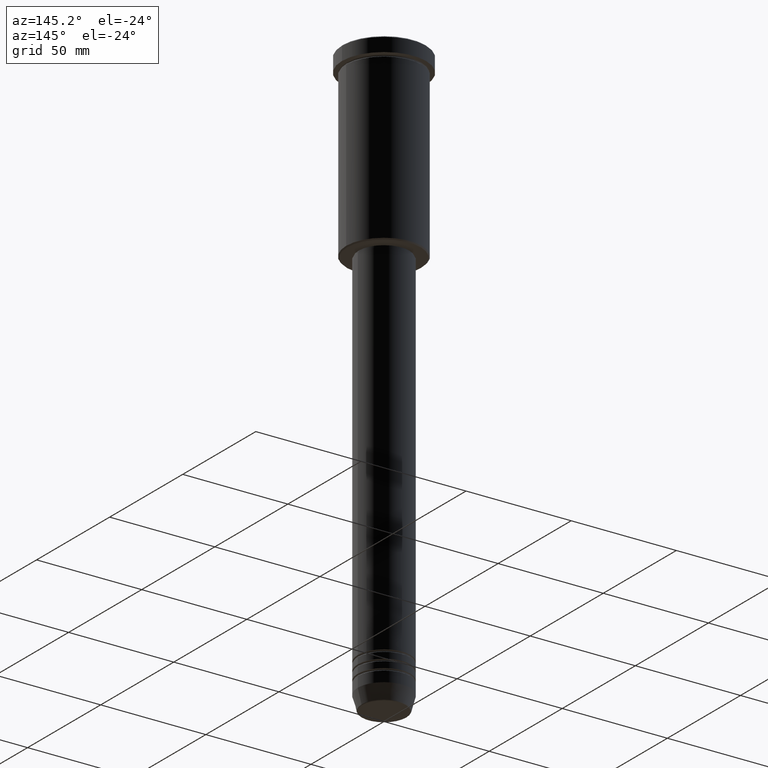
[diagram: clean part render]
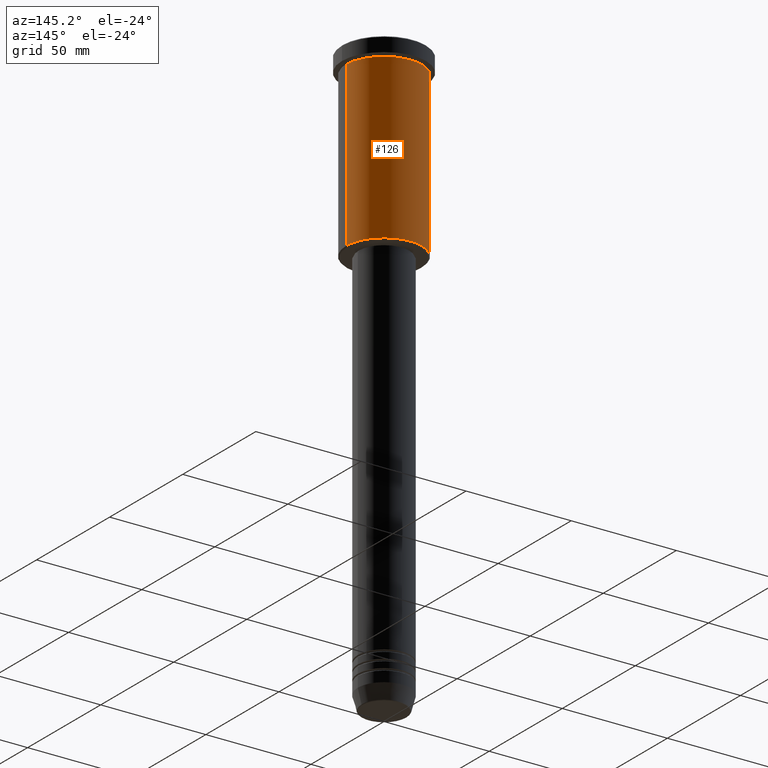
[diagram: same view with one face highlighted and labeled with its STEP entity id]
A machine part, auxiliary view. The second image highlights one B-rep face of the part: STEP entity #126.
In plain terms, the highlighted cylindrical surface (partial cylindrical patch) has radius 18 mm, axis along (-0, -0, 1).
Its self-contained STEP definition (entity closure, byte-faithful):
#31 = AXIS2_PLACEMENT_3D ( 'NONE', #76, #715, #1082 ) ;
#57 = CIRCLE ( 'NONE', #708, 18.00000000000000000 ) ;
#70 = EDGE_CURVE ( 'NONE', #1040, #822, #802, .T. ) ;
#76 = CARTESIAN_POINT ( 'NONE',  ( 0.000000000000000000, 0.000000000000000000, -7.999999999999996447 ) ) ;
#93 = DIRECTION ( 'NONE',  ( -0.000000000000000000, -0.000000000000000000, 1.000000000000000000 ) ) ;
#126 = ADVANCED_FACE ( 'NONE', ( #626 ), #172, .T. ) ;
#136 = VERTEX_POINT ( 'NONE', #452 ) ;
#146 = AXIS2_PLACEMENT_3D ( 'NONE', #180, #93, #542 ) ;
#172 = CYLINDRICAL_SURFACE ( 'NONE', #146, 18.00000000000000000 ) ;
#180 = CARTESIAN_POINT ( 'NONE',  ( 0.000000000000000000, 0.000000000000000000, 0.000000000000000000 ) ) ;
#193 = CARTESIAN_POINT ( 'NONE',  ( -18.00000000000000000, 2.204364238465235428E-15, 0.000000000000000000 ) ) ;
#236 = EDGE_LOOP ( 'NONE', ( #758, #825, #435, #1061 ) ) ;
#253 = CARTESIAN_POINT ( 'NONE',  ( 0.000000000000000000, 0.000000000000000000, -85.49999999999990052 ) ) ;
#271 = EDGE_CURVE ( 'NONE', #136, #822, #1021, .T. ) ;
#403 = CARTESIAN_POINT ( 'NONE',  ( -18.00000000000000000, 2.204364238465235428E-15, -7.999999999999996447 ) ) ;
#435 = ORIENTED_EDGE ( 'NONE', *, *, #70, .F. ) ;
#452 = CARTESIAN_POINT ( 'NONE',  ( -18.00000000000000000, 2.204364238465235428E-15, -85.49999999999990052 ) ) ;
#542 = DIRECTION ( 'NONE',  ( 1.000000000000000000, 0.000000000000000000, 0.000000000000000000 ) ) ;
#590 = VECTOR ( 'NONE', #677, 1000.000000000000000 ) ;
#626 = FACE_OUTER_BOUND ( 'NONE', #236, .T. ) ;
#627 = EDGE_CURVE ( 'NONE', #1141, #1040, #1042, .T. ) ;
#663 = CARTESIAN_POINT ( 'NONE',  ( 18.00000000000000000, 0.000000000000000000, -7.999999999999996447 ) ) ;
#677 = DIRECTION ( 'NONE',  ( -0.000000000000000000, -0.000000000000000000, 1.000000000000000000 ) ) ;
#708 = AXIS2_PLACEMENT_3D ( 'NONE', #253, #718, #1085 ) ;
#715 = DIRECTION ( 'NONE',  ( -0.000000000000000000, -0.000000000000000000, 1.000000000000000000 ) ) ;
#718 = DIRECTION ( 'NONE',  ( -0.000000000000000000, -0.000000000000000000, 1.000000000000000000 ) ) ;
#758 = ORIENTED_EDGE ( 'NONE', *, *, #1109, .T. ) ;
#802 = CIRCLE ( 'NONE', #31, 18.00000000000000000 ) ;
#821 = CARTESIAN_POINT ( 'NONE',  ( 18.00000000000000000, 0.000000000000000000, -85.49999999999990052 ) ) ;
#822 = VERTEX_POINT ( 'NONE', #403 ) ;
#825 = ORIENTED_EDGE ( 'NONE', *, *, #271, .T. ) ;
#860 = VECTOR ( 'NONE', #931, 1000.000000000000000 ) ;
#931 = DIRECTION ( 'NONE',  ( -0.000000000000000000, -0.000000000000000000, 1.000000000000000000 ) ) ;
#957 = CARTESIAN_POINT ( 'NONE',  ( 18.00000000000000000, 0.000000000000000000, 0.000000000000000000 ) ) ;
#1021 = LINE ( 'NONE', #193, #860 ) ;
#1040 = VERTEX_POINT ( 'NONE', #663 ) ;
#1042 = LINE ( 'NONE', #957, #590 ) ;
#1061 = ORIENTED_EDGE ( 'NONE', *, *, #627, .F. ) ;
#1082 = DIRECTION ( 'NONE',  ( 1.000000000000000000, 0.000000000000000000, 0.000000000000000000 ) ) ;
#1085 = DIRECTION ( 'NONE',  ( -1.000000000000000000, 0.000000000000000000, 0.000000000000000000 ) ) ;
#1109 = EDGE_CURVE ( 'NONE', #1141, #136, #57, .T. ) ;
#1141 = VERTEX_POINT ( 'NONE', #821 ) ;